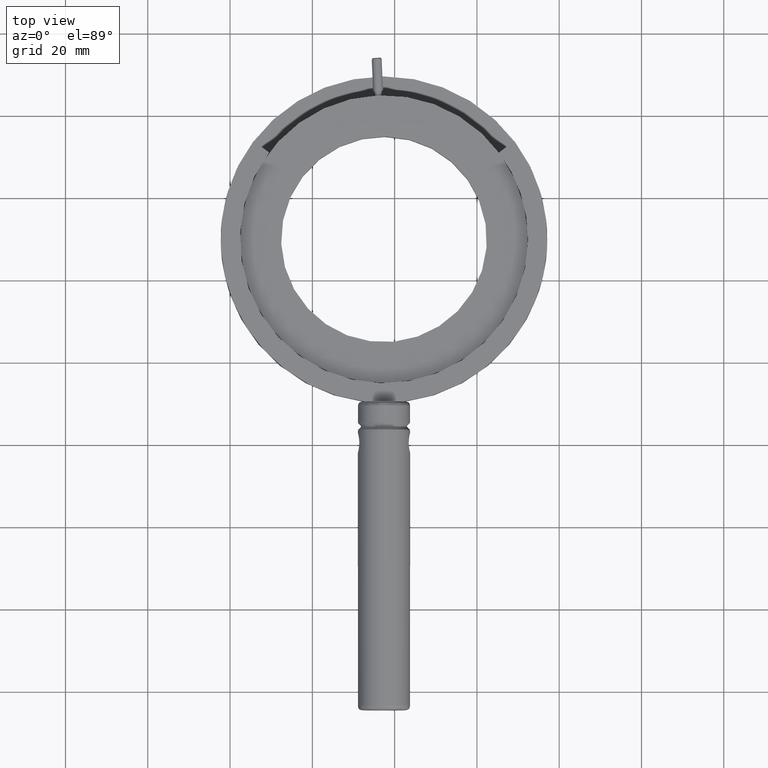
[diagram: clean part render]
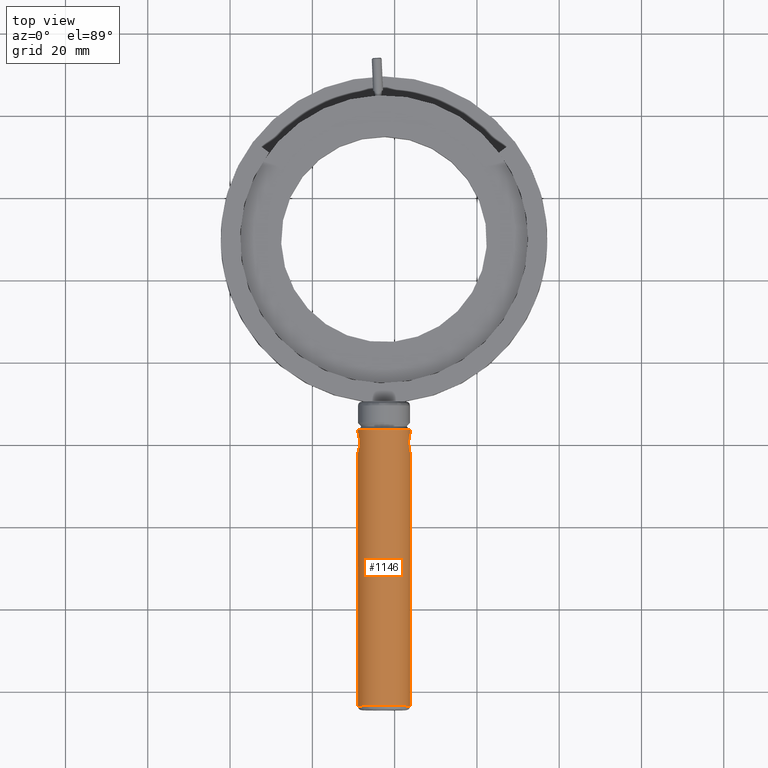
[diagram: same view with one face highlighted and labeled with its STEP entity id]
A machine part, top view. The second image highlights one B-rep face of the part: STEP entity #1146.
In plain terms, the highlighted cylindrical surface (bore or boss wall) has radius 6.35 mm, axis along (-0, -1, 0).
Its self-contained STEP definition (entity closure, byte-faithful):
#6 = CARTESIAN_POINT ( 'NONE',  ( 3.556203261706577745, -60.98190882788875911, 81.02333206760398809 ) ) ;
#13 = CARTESIAN_POINT ( 'NONE',  ( -8.604069812374886439, -59.66984231144044060, 77.37285063913297734 ) ) ;
#23 = CARTESIAN_POINT ( 'NONE',  ( -2.583978736669420684, -56.36592512715285608, 79.39299999999998647 ) ) ;
#32 = CARTESIAN_POINT ( 'NONE',  ( -8.723426228816817840, -60.97751405451368356, 77.75993924441937111 ) ) ;
#34 = CARTESIAN_POINT ( 'NONE',  ( -8.680444060792481764, -58.32983664751714059, 77.61372200049649450 ) ) ;
#39 = CYLINDRICAL_SURFACE ( 'NONE', #799, 6.350000000000000533 ) ;
#40 = CARTESIAN_POINT ( 'NONE',  ( -8.604069812327770350, -59.51592512715286176, 77.37285063916378647 ) ) ;
#47 = CIRCLE ( 'NONE', #589, 6.350000000000000533 ) ;
#88 = EDGE_CURVE ( 'NONE', #1289, #144, #1605, .T. ) ;
#104 = ORIENTED_EDGE ( 'NONE', *, *, #1075, .T. ) ;
#111 = CARTESIAN_POINT ( 'NONE',  ( 3.442091362397214027, -60.70098767865521694, 77.38821532993985386 ) ) ;
#116 = CARTESIAN_POINT ( 'NONE',  ( 3.705457104048145212, -61.72600832782421776, 80.27851156054060766 ) ) ;
#125 = CARTESIAN_POINT ( 'NONE',  ( 3.488490964272474404, -60.96642409686842967, 77.52620574235376694 ) ) ;
#144 = VERTEX_POINT ( 'NONE', #1777 ) ;
#162 = CARTESIAN_POINT ( 'NONE',  ( -8.610195720101875949, -60.70201360677028646, 81.39735239325381144 ) ) ;
#166 = CARTESIAN_POINT ( 'NONE',  ( -8.524932968503598829, -59.51592512715286176, 81.63522273972942855 ) ) ;
#172 = CARTESIAN_POINT ( 'NONE',  ( -8.811755591243882080, -61.64263174004686618, 80.66232417505905516 ) ) ;
#176 = CARTESIAN_POINT ( 'NONE',  ( -8.916647066414657985, -57.11484246103307072, 78.90144149516356720 ) ) ;
#180 = FACE_OUTER_BOUND ( 'NONE', #1175, .T. ) ;
#194 = CARTESIAN_POINT ( 'NONE',  ( -8.734836833038823301, -57.70015768469082929, 80.97374204517690544 ) ) ;
#246 = CARTESIAN_POINT ( 'NONE',  ( 3.356975495204540305, -59.20891950412311644, 77.15077726022171589 ) ) ;
#257 = CARTESIAN_POINT ( 'NONE',  ( -8.524932968503598829, -59.51592512715286176, 81.63522273972942855 ) ) ;
#258 = CARTESIAN_POINT ( 'NONE',  ( 3.356975495204541193, -59.82293075018263551, 77.15077726022170168 ) ) ;
#262 = ORIENTED_EDGE ( 'NONE', *, *, #1244, .T. ) ;
#268 = CARTESIAN_POINT ( 'NONE',  ( 3.641520788684006416, -57.59018254807776316, 80.65908053515265408 ) ) ;
#275 = CARTESIAN_POINT ( 'NONE',  ( 3.754342732301887420, -57.03383852522513564, 78.98041755191368907 ) ) ;
#287 = CARTESIAN_POINT ( 'NONE',  ( 3.643416460009646141, -61.64122858363725754, 78.12188279821467063 ) ) ;
#297 = CARTESIAN_POINT ( 'NONE',  ( -8.680891527085851322, -60.70463014070573848, 77.61527409304602543 ) ) ;
#311 = VERTEX_POINT ( 'NONE', #1465 ) ;
#329 = CARTESIAN_POINT ( 'NONE',  ( -8.935655612756761457, -57.01664285261701082, 79.35070340048392268 ) ) ;
#393 = CARTESIAN_POINT ( 'NONE',  ( 3.442887184187614302, -58.32622028457240049, 77.39060698559207196 ) ) ;
#409 = DIRECTION ( 'NONE',  ( -0.01856318637304628372, 0.000000000000000000, -0.9998276892103357127 ) ) ;
#413 = CARTESIAN_POINT ( 'NONE',  ( 3.644506567098333427, -61.44544397702841110, 80.63489350180601889 ) ) ;
#430 = CARTESIAN_POINT ( 'NONE',  ( 3.667967088155083655, -57.30683969163835201, 78.27302046797302637 ) ) ;
#440 = DIRECTION ( 'NONE',  ( -0.000000000000000000, -1.000000000000000000, 0.000000000000000000 ) ) ;
#462 = CARTESIAN_POINT ( 'NONE',  ( -8.895796886103711998, -57.10945976282807379, 80.10393760874617897 ) ) ;
#470 = CARTESIAN_POINT ( 'NONE',  ( -8.624317208021855308, -60.12463604977921250, 77.43405272393898997 ) ) ;
#472 = CIRCLE ( 'NONE', #1621, 6.350000000000000533 ) ;
#476 = CARTESIAN_POINT ( 'NONE',  ( -8.922098832076724051, -57.03435438504931909, 79.80858908942843755 ) ) ;
#481 = CARTESIAN_POINT ( 'NONE',  ( -2.583978736669420684, -49.51592512715286176, 79.39299999999998647 ) ) ;
#482 = CARTESIAN_POINT ( 'NONE',  ( -8.608228636046382221, -59.82236112239895931, 77.38512141085578833 ) ) ;
#540 = CARTESIAN_POINT ( 'NONE',  ( 3.513617553561244833, -60.70955221307405481, 81.16840907918553683 ) ) ;
#549 = CARTESIAN_POINT ( 'NONE',  ( 3.436353155412978921, -59.83003531662637187, 81.41243171957189873 ) ) ;
#570 = CARTESIAN_POINT ( 'NONE',  ( 3.737700957811699531, -61.86864651788196312, 80.00741009003664317 ) ) ;
#579 = CARTESIAN_POINT ( 'NONE',  ( 3.452334924375948688, -58.91581927259368001, 81.36670791057981944 ) ) ;
#589 = AXIS2_PLACEMENT_3D ( 'NONE', #1116, #1840, #409 ) ;
#590 = CARTESIAN_POINT ( 'NONE',  ( -8.935744066253725748, -62.01660491830713084, 79.36720584478277374 ) ) ;
#597 = CARTESIAN_POINT ( 'NONE',  ( -8.656661314441031152, -60.96759565686976856, 81.25913823363970323 ) ) ;
#600 = CARTESIAN_POINT ( 'NONE',  ( -8.761278465526963544, -57.58964045221171801, 80.86856099773409312 ) ) ;
#608 = CARTESIAN_POINT ( 'NONE',  ( -8.835570798230632406, -57.30808723810758210, 80.51492398791114624 ) ) ;
#613 = DIRECTION ( 'NONE',  ( -0.000000000000000000, -1.000000000000000000, 0.000000000000000000 ) ) ;
#620 = CARTESIAN_POINT ( 'NONE',  ( -8.811648365177582320, -57.39371175969323957, 80.63897078470344582 ) ) ;
#623 = EDGE_LOOP ( 'NONE', ( #1733 ) ) ;
#686 = B_SPLINE_CURVE_WITH_KNOTS ( 'NONE', 3,
 ( #1336, #908, #1480, #34, #1460, #891, #1188, #872, #176, #1745, #329, #1328, #476, #462, #1753, #608, #620, #600, #194, #1035, #1489, #1180, #1770, #1638, #728, #166 ),
 .UNSPECIFIED., .F., .F.,
 ( 4, 2, 2, 2, 2, 2, 2, 2, 2, 2, 2, 2, 4 ),
 ( 4.448025840071552622E-15, 0.0009087577897704467948, 0.001817515579536445542, 0.002726273369302444505, 0.003180652264185443445, 0.003635031159068441951, 0.004089410053951441325, 0.004543788948834440698, 0.004998167843717440072, 0.005452546738600440313, 0.006361304528366464213, 0.006815683423249476597, 0.007270062318132488113 ),
 .UNSPECIFIED. ) ;
#687 = CARTESIAN_POINT ( 'NONE',  ( 3.761609177785445013, -62.01491284576671603, 79.11182267387347622 ) ) ;
#698 = EDGE_LOOP ( 'NONE', ( #1257, #1331 ) ) ;
#711 = CARTESIAN_POINT ( 'NONE',  ( 3.750149700410761344, -61.92361966101876192, 79.86553327657014734 ) ) ;
#718 = CARTESIAN_POINT ( 'NONE',  ( 3.686217235034251694, -61.64070269802880375, 80.40343115822403774 ) ) ;
#725 = DIRECTION ( 'NONE',  ( -0.01856318637304628372, 0.000000000000000000, -0.9998276892103357127 ) ) ;
#728 = CARTESIAN_POINT ( 'NONE',  ( -8.524932968543378564, -59.36200794286303051, 81.63522273977827126 ) ) ;
#736 = CARTESIAN_POINT ( 'NONE',  ( -8.917836870032889607, -61.92239049142467877, 78.91684689281412091 ) ) ;
#745 = CARTESIAN_POINT ( 'NONE',  ( -8.929708091362844158, -62.01520740163239509, 79.67104153922524290 ) ) ;
#799 = AXIS2_PLACEMENT_3D ( 'NONE', #481, #440, #1015 ) ;
#834 = CARTESIAN_POINT ( 'NONE',  ( 3.356975495204540749, -59.51592512715285466, 77.15077726022171589 ) ) ;
#842 = CARTESIAN_POINT ( 'NONE',  ( 3.707737225825419980, -61.85964959538947028, 78.52395873725022568 ) ) ;
#851 = CARTESIAN_POINT ( 'NONE',  ( 3.728133794738300644, -57.10856109595481911, 78.68463659655722608 ) ) ;
#863 = CARTESIAN_POINT ( 'NONE',  ( 3.593649655544519206, -57.58829481271138206, 77.91880077867301679 ) ) ;
#872 = CARTESIAN_POINT ( 'NONE',  ( -8.903858631458090755, -57.17113767575290240, 78.76047314809007105 ) ) ;
#891 = CARTESIAN_POINT ( 'NONE',  ( -8.810184883158113323, -57.58682922591740549, 78.13034303199607677 ) ) ;
#908 = CARTESIAN_POINT ( 'NONE',  ( -8.604069812371189840, -59.20864358654088022, 77.37285063912196392 ) ) ;
#965 = CARTESIAN_POINT ( 'NONE',  ( 3.376191997423751090, -58.90096465635277667, 77.20004413345895955 ) ) ;
#985 = CARTESIAN_POINT ( 'NONE',  ( 3.553064798386491585, -58.06863651517860347, 81.03510258829845725 ) ) ;
#987 = B_SPLINE_CURVE_WITH_KNOTS ( 'NONE', 3,
 ( #834, #258, #1280, #111, #125, #1710, #287, #842, #1412, #1264, #687, #1868, #1576, #711, #570, #116, #718, #413, #1272, #6, #540, #1850, #549, #1861, #579, #1125, #985, #268, #1420, #1148, #1139, #1723, #994, #1117, #275, #851, #1732, #430, #1002, #863, #1301, #1157, #393, #965, #246, #1545 ),
 .UNSPECIFIED., .T., .F.,
 ( 4, 2, 2, 2, 2, 2, 2, 2, 2, 2, 2, 2, 2, 2, 2, 2, 2, 2, 2, 2, 2, 2, 4 ),
 ( 0.000000000000000000, 0.0009079417880900155554, 0.001815883576180031111, 0.002723825364270046449, 0.003177796258315036555, 0.003631767152360026660, 0.004085738046405016331, 0.004539708940450006870, 0.004993679834494996542, 0.005447650728539986213, 0.006355592516629982903, 0.007263534304719978726, 0.008171476092809973682, 0.009079417880899970372, 0.009987359668989967063, 0.01044133056303494199, 0.01089530145707991865, 0.01134927235112489358, 0.01180324324516986850, 0.01225721413921484516, 0.01271118503325982009, 0.01361912682134973004, 0.01452706860943964173 ),
 .UNSPECIFIED. ) ;
#994 = CARTESIAN_POINT ( 'NONE',  ( 3.767677729040047829, -57.01693970048513904, 79.43871445239884110 ) ) ;
#1002 = CARTESIAN_POINT ( 'NONE',  ( 3.644041723497078333, -57.39241521399112145, 78.14876648325311237 ) ) ;
#1004 = EDGE_CURVE ( 'NONE', #1343, #1343, #987, .T. ) ;
#1015 = DIRECTION ( 'NONE',  ( -0.01856318637304628372, 0.000000000000000000, -0.9998276892103357127 ) ) ;
#1016 = CARTESIAN_POINT ( 'NONE',  ( -8.636281886653078388, -60.27390931277352593, 77.47084877695650107 ) ) ;
#1033 = CARTESIAN_POINT ( 'NONE',  ( -8.905294027425446401, -61.86703913148528500, 78.77486592580623892 ) ) ;
#1035 = CARTESIAN_POINT ( 'NONE',  ( -8.658575846013340183, -58.05433619976637516, 81.25283141693083167 ) ) ;
#1075 = EDGE_CURVE ( 'NONE', #311, #311, #472, .T. ) ;
#1116 = CARTESIAN_POINT ( 'NONE',  ( -2.583978736669420684, -123.5159251271528689, 79.39299999999998647 ) ) ;
#1117 = CARTESIAN_POINT ( 'NONE',  ( 3.762583565349599812, -57.01498465847313923, 79.13458828173230586 ) ) ;
#1125 = CARTESIAN_POINT ( 'NONE',  ( 3.511785590159065329, -58.33494441246678264, 81.17464609352511218 ) ) ;
#1139 = CARTESIAN_POINT ( 'NONE',  ( 3.748409302927386832, -57.11611003071448067, 79.88816525857342299 ) ) ;
#1146 = ADVANCED_FACE ( 'NONE', ( #1475, #180, #1332, #1485 ), #39, .T. ) ;
#1148 = CARTESIAN_POINT ( 'NONE',  ( 3.735537413917362937, -57.17273920126265097, 80.02915514757033577 ) ) ;
#1157 = CARTESIAN_POINT ( 'NONE',  ( 3.490836184618607341, -58.05315098791271566, 77.53384580497080947 ) ) ;
#1170 = CARTESIAN_POINT ( 'NONE',  ( -8.933157359338400383, -61.99749586920047761, 79.21296819030926883 ) ) ;
#1175 = EDGE_LOOP ( 'NONE', ( #104 ) ) ;
#1180 = CARTESIAN_POINT ( 'NONE',  ( -8.560760531254944183, -58.75794094151909519, 81.53848785208877814 ) ) ;
#1186 = CARTESIAN_POINT ( 'NONE',  ( -8.811793958815417938, -61.44220980205698623, 78.14775714939449358 ) ) ;
#1188 = CARTESIAN_POINT ( 'NONE',  ( -8.854580790712248017, -57.38921851421877562, 78.35572554663752953 ) ) ;
#1199 = CARTESIAN_POINT ( 'NONE',  ( -8.853606761271539227, -61.63813849456958138, 78.37905886201359351 ) ) ;
#1244 = EDGE_CURVE ( 'NONE', #1691, #1691, #47, .T. ) ;
#1257 = ORIENTED_EDGE ( 'NONE', *, *, #88, .T. ) ;
#1264 = CARTESIAN_POINT ( 'NONE',  ( 3.752814659335980352, -61.99407749559712499, 78.95790829558586665 ) ) ;
#1272 = CARTESIAN_POINT ( 'NONE',  ( 3.622014614226799267, -61.33521520237768954, 80.74113795087579604 ) ) ;
#1280 = CARTESIAN_POINT ( 'NONE',  ( 3.375348635324469271, -60.12134738272598611, 77.19775521055679235 ) ) ;
#1289 = VERTEX_POINT ( 'NONE', #257 ) ;
#1301 = CARTESIAN_POINT ( 'NONE',  ( 3.567182099541287954, -57.69883919033947706, 77.81342631407484589 ) ) ;
#1310 = CARTESIAN_POINT ( 'NONE',  ( -8.894036054497675536, -61.91700779322089687, 80.11928822374930803 ) ) ;
#1328 = CARTESIAN_POINT ( 'NONE',  ( -8.930409054226597476, -57.01524533594194111, 79.65455375153936757 ) ) ;
#1331 = ORIENTED_EDGE ( 'NONE', *, *, #1589, .T. ) ;
#1332 = FACE_BOUND ( 'NONE', #623, .T. ) ;
#1336 = CARTESIAN_POINT ( 'NONE',  ( -8.604069812327770350, -59.51592512715286176, 77.37285063916378647 ) ) ;
#1343 = VERTEX_POINT ( 'NONE', #1484 ) ;
#1392 = CARTESIAN_POINT ( 'NONE',  ( -2.701854970138264367, -123.5159251271528689, 73.04409417351435252 ) ) ;
#1412 = CARTESIAN_POINT ( 'NONE',  ( 3.725778926229888377, -61.91608660289405464, 78.66415600407833608 ) ) ;
#1420 = CARTESIAN_POINT ( 'NONE',  ( 3.686018318775747371, -57.39191276413717446, 80.43393607966041259 ) ) ;
#1457 = CARTESIAN_POINT ( 'NONE',  ( -8.543339249368548494, -60.12188424572313750, 81.58816330313590015 ) ) ;
#1460 = CARTESIAN_POINT ( 'NONE',  ( -8.721747125583345195, -58.06425459741191020, 77.75356570687587521 ) ) ;
#1465 = CARTESIAN_POINT ( 'NONE',  ( -2.701854970138264367, -56.36592512715285608, 73.04409417351435252 ) ) ;
#1468 = CARTESIAN_POINT ( 'NONE',  ( -8.524932968503598829, -59.51592512715286176, 81.63522273972942855 ) ) ;
#1475 = FACE_OUTER_BOUND ( 'NONE', #1788, .T. ) ;
#1480 = CARTESIAN_POINT ( 'NONE',  ( -8.620716562748686584, -58.90996600857304344, 77.42056088384563850 ) ) ;
#1484 = CARTESIAN_POINT ( 'NONE',  ( 3.356975495204540305, -59.51592512715286176, 77.15077726022170168 ) ) ;
#1485 = FACE_BOUND ( 'NONE', #698, .T. ) ;
#1489 = CARTESIAN_POINT ( 'NONE',  ( -8.610700491638072052, -58.32722011357954273, 81.39581798034325288 ) ) ;
#1545 = CARTESIAN_POINT ( 'NONE',  ( 3.356975495204540749, -59.51592512715285466, 77.15077726022171589 ) ) ;
#1576 = CARTESIAN_POINT ( 'NONE',  ( 3.765299106093312531, -61.99808056463884753, 79.56946991328888430 ) ) ;
#1589 = EDGE_CURVE ( 'NONE', #144, #1289, #686, .T. ) ;
#1597 = CARTESIAN_POINT ( 'NONE',  ( -8.920981657986031266, -61.99462407370704398, 79.82510173970904077 ) ) ;
#1605 = B_SPLINE_CURVE_WITH_KNOTS ( 'NONE', 3,
 ( #1468, #1740, #1457, #162, #597, #1634, #172, #1615, #1310, #1597, #745, #590, #1170, #736, #1033, #1759, #1199, #1186, #1767, #32, #297, #1016, #470, #482, #13, #40 ),
 .UNSPECIFIED., .F., .F.,
 ( 4, 2, 2, 2, 2, 2, 2, 2, 2, 2, 2, 2, 4 ),
 ( 3.469166349084038015E-15, 0.0009087577897568349617, 0.001817515579510200910, 0.002726273369263566750, 0.003180652264140271680, 0.003635031159016976609, 0.004089410053893682839, 0.004543788948770387769, 0.004998167843647093565, 0.005452546738523798495, 0.006361304528277225701, 0.006815683423153948844, 0.007270062318030671988 ),
 .UNSPECIFIED. ) ;
#1615 = CARTESIAN_POINT ( 'NONE',  ( -8.876023691537822558, -61.86071257850343841, 80.25968471133145954 ) ) ;
#1621 = AXIS2_PLACEMENT_3D ( 'NONE', #23, #613, #725 ) ;
#1634 = CARTESIAN_POINT ( 'NONE',  ( -8.759024087214289267, -61.44502102835399171, 80.88590338472951657 ) ) ;
#1638 = CARTESIAN_POINT ( 'NONE',  ( -8.529544416766503545, -59.20948913190049723, 81.62311480030486166 ) ) ;
#1691 = VERTEX_POINT ( 'NONE', #1392 ) ;
#1710 = CARTESIAN_POINT ( 'NONE',  ( 3.590728093421358569, -61.44361988163121424, 77.89874278262789176 ) ) ;
#1723 = CARTESIAN_POINT ( 'NONE',  ( 3.764586063434458119, -57.03785069210302794, 79.59312969846777719 ) ) ;
#1732 = CARTESIAN_POINT ( 'NONE',  ( 3.710367524795312733, -57.16374124529751555, 78.54306712648302380 ) ) ;
#1733 = ORIENTED_EDGE ( 'NONE', *, *, #1004, .T. ) ;
#1740 = CARTESIAN_POINT ( 'NONE',  ( -8.524932968547490830, -59.82320666776058715, 81.63522273976741417 ) ) ;
#1745 = CARTESIAN_POINT ( 'NONE',  ( -8.932653904359161956, -57.03722618054350590, 79.19642545079548768 ) ) ;
#1753 = CARTESIAN_POINT ( 'NONE',  ( -8.877992357806769874, -57.16481112276966314, 80.24535513476669735 ) ) ;
#1759 = CARTESIAN_POINT ( 'NONE',  ( -8.872908093317233735, -61.72376301615243221, 78.50390816789338544 ) ) ;
#1767 = CARTESIAN_POINT ( 'NONE',  ( -8.789274867372796507, -61.33169256958073845, 78.04166707827387484 ) ) ;
#1770 = CARTESIAN_POINT ( 'NONE',  ( -8.547438229900645723, -58.90721420451587420, 81.57481441728607763 ) ) ;
#1777 = CARTESIAN_POINT ( 'NONE',  ( -8.604069812327770350, -59.51592512715286176, 77.37285063916378647 ) ) ;
#1788 = EDGE_LOOP ( 'NONE', ( #262 ) ) ;
#1840 = DIRECTION ( 'NONE',  ( 0.000000000000000000, 1.000000000000000000, -0.000000000000000000 ) ) ;
#1850 = CARTESIAN_POINT ( 'NONE',  ( 3.453895407071996271, -60.13623845380636368, 81.36196768420110459 ) ) ;
#1861 = CARTESIAN_POINT ( 'NONE',  ( 3.435876662238944057, -59.21508106522069426, 81.41385168606493039 ) ) ;
#1868 = CARTESIAN_POINT ( 'NONE',  ( 3.767796267630235008, -62.01686337959804263, 79.41538221520347918 ) ) ;